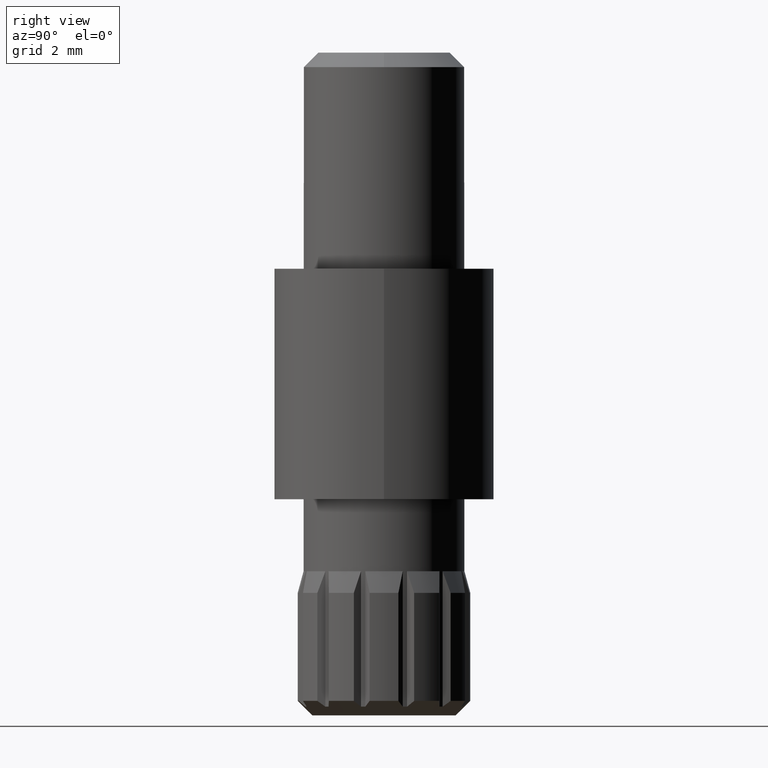
[diagram: clean part render]
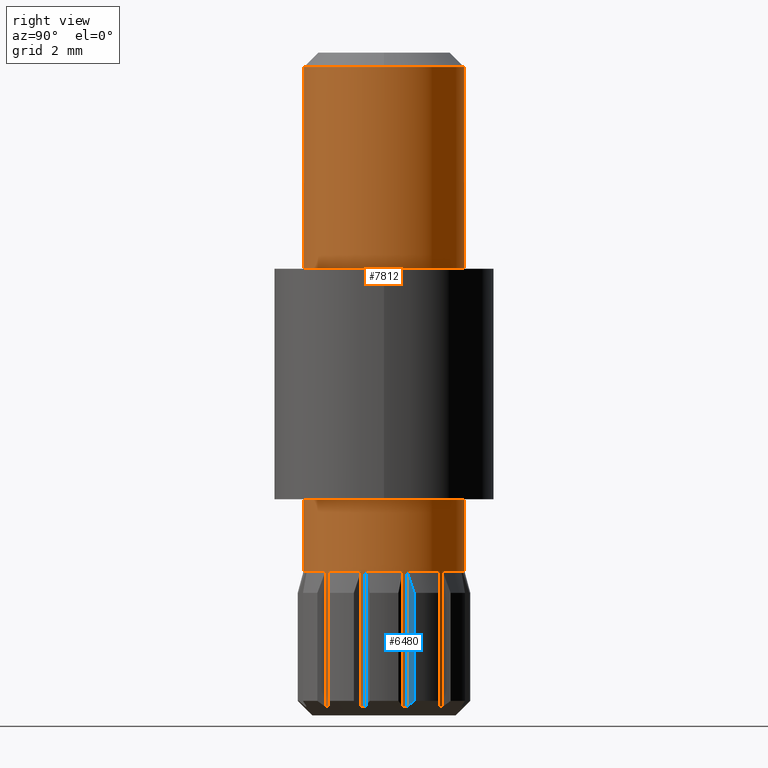
[diagram: same view with the hole feature highlighted: cylindrical wall and planar end face, labeled with their STEP entity ids]
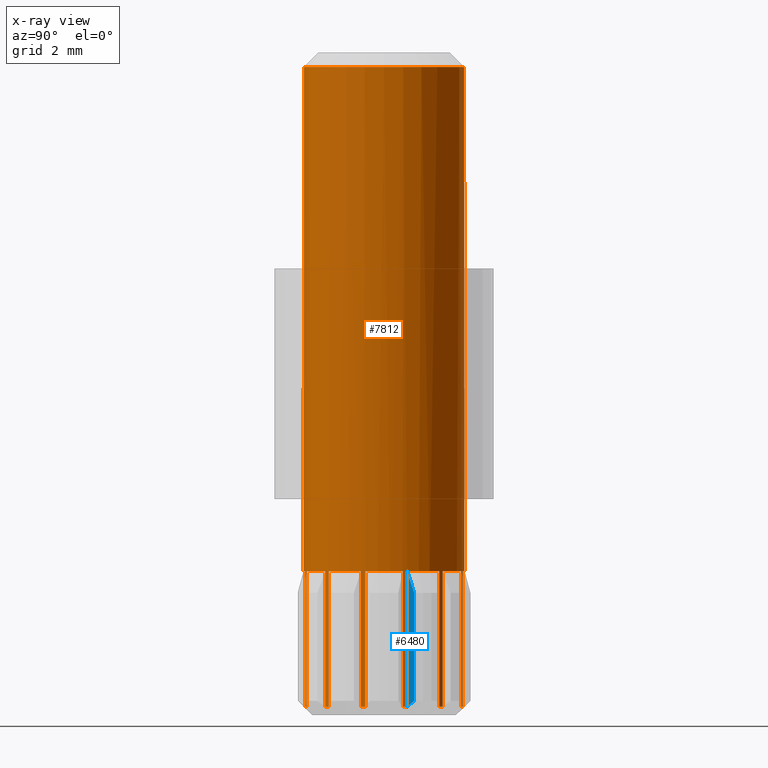
[diagram: x-ray of the same camera — body ghosted, the hole faces saturated]
A machine part, right view. The highlighted faces form one hole feature of diameter 5.6 mm: the cylindrical wall (entity #7812, orange) and its adjacent planar end face (entity #6480, blue) — they share a circular edge in the B-rep.
The next image is the same camera in x-ray (body ghosted, the hole faces saturated) — the bore reads through the body.
Wall:
#6 = DIRECTION ( 'NONE',  ( 0.000000000000000000, 0.000000000000000000, -1.000000000000000000 ) ) ;
#29 = DIRECTION ( 'NONE',  ( 0.000000000000000000, 0.000000000000000000, 1.000000000000000000 ) ) ;
#37 = ORIENTED_EDGE ( 'NONE', *, *, #7502, .T. ) ;
#64 = DIRECTION ( 'NONE',  ( 1.000000000000000000, 0.000000000000000000, 0.000000000000000000 ) ) ;
#92 = DIRECTION ( 'NONE',  ( 0.000000000000000000, 0.000000000000000000, 1.000000000000000000 ) ) ;
#101 = ORIENTED_EDGE ( 'NONE', *, *, #2137, .T. ) ;
#181 = CARTESIAN_POINT ( 'NONE',  ( 2.033627779027462612, 1.924670895599512432, 5.000000000000000888 ) ) ;
#231 = DIRECTION ( 'NONE',  ( 0.000000000000000000, 0.000000000000000000, -1.000000000000000000 ) ) ;
#276 = LINE ( 'NONE', #11826, #7999 ) ;
#279 = VERTEX_POINT ( 'NONE', #9187 ) ;
#293 = CARTESIAN_POINT ( 'NONE',  ( -2.033627779027435523, 1.924670895599541076, 5.000000000000000000 ) ) ;
#340 = CARTESIAN_POINT ( 'NONE',  ( -0.6500000000000001332, -2.723508766279265192, 5.000000000000000000 ) ) ;
#400 = VERTEX_POINT ( 'NONE', #6396 ) ;
#410 = EDGE_CURVE ( 'NONE', #12297, #7067, #2872, .T. ) ;
#510 = CARTESIAN_POINT ( 'NONE',  ( 2.033627779027463056, 1.924670895599512654, 0.2999999999999999334 ) ) ;
#645 = EDGE_LOOP ( 'NONE', ( #9977, #3326, #7216, #6768, #5356, #11461, #1287, #3783, #1062, #11351, #7611, #12247, #3300, #7050, #11385, #10868, #10869, #7730, #11650, #37, #8143, #8618, #10447, #2359, #1370, #101, #11748, #6563, #5672, #1427, #9020, #4490, #6494, #12428, #6712, #10213, #5005, #7232, #12411, #4634, #8679, #1032, #3861, #8223, #3102, #3468, #1774, #10575 ) ) ;
#684 = EDGE_CURVE ( 'NONE', #4462, #10033, #4604, .T. ) ;
#706 = VECTOR ( 'NONE', #8546, 1000.000000000000000 ) ;
#714 = AXIS2_PLACEMENT_3D ( 'NONE', #12992, #11049, #11124 ) ;
#719 = CARTESIAN_POINT ( 'NONE',  ( 0.7988378706797321094, -2.683627779027463855, 5.000000000000000000 ) ) ;
#768 = CARTESIAN_POINT ( 'NONE',  ( 2.033627779027463056, 1.924670895599512654, 5.000000000000000000 ) ) ;
#769 = LINE ( 'NONE', #768, #3770 ) ;
#795 = EDGE_CURVE ( 'NONE', #11417, #9894, #1610, .T. ) ;
#805 = CARTESIAN_POINT ( 'NONE',  ( 0.000000000000000000, 0.000000000000000000, 0.2999999999999996003 ) ) ;
#813 = CARTESIAN_POINT ( 'NONE',  ( -1.924670895599491116, 2.033627779027482596, 0.2999999999999996003 ) ) ;
#816 = CARTESIAN_POINT ( 'NONE',  ( -2.683627779027448756, 0.7988378706797784057, 5.000000000000000000 ) ) ;
#842 = CARTESIAN_POINT ( 'NONE',  ( 0.6500000000000000222, -2.723508766279264304, 5.000000000000000888 ) ) ;
#945 = VERTEX_POINT ( 'NONE', #2553 ) ;
#953 = VECTOR ( 'NONE', #5148, 1000.000000000000000 ) ;
#1028 = CARTESIAN_POINT ( 'NONE',  ( 2.723508766279266524, 0.6499999999999904743, 5.000000000000000000 ) ) ;
#1030 = DIRECTION ( 'NONE',  ( 0.000000000000000000, 0.000000000000000000, -1.000000000000000000 ) ) ;
#1032 = ORIENTED_EDGE ( 'NONE', *, *, #12293, .T. ) ;
#1033 = EDGE_CURVE ( 'NONE', #5716, #4518, #7728, .T. ) ;
#1059 = AXIS2_PLACEMENT_3D ( 'NONE', #5111, #1030, #6239 ) ;
#1062 = ORIENTED_EDGE ( 'NONE', *, *, #2222, .F. ) ;
#1065 = VECTOR ( 'NONE', #2794, 1000.000000000000000 ) ;
#1090 = DIRECTION ( 'NONE',  ( -0.5000000000000101030, -0.8660254037844328234, 0.000000000000000000 ) ) ;
#1152 = LINE ( 'NONE', #8473, #2591 ) ;
#1167 = EDGE_CURVE ( 'NONE', #4621, #4689, #7403, .T. ) ;
#1287 = ORIENTED_EDGE ( 'NONE', *, *, #8615, .T. ) ;
#1370 = ORIENTED_EDGE ( 'NONE', *, *, #11649, .F. ) ;
#1372 = VERTEX_POINT ( 'NONE', #6410 ) ;
#1382 = CARTESIAN_POINT ( 'NONE',  ( -0.7988378706797689688, -2.683627779027451865, 0.3000000000000002109 ) ) ;
#1396 = CARTESIAN_POINT ( 'NONE',  ( -2.683627779027466076, -0.7988378706797225615, 5.000000000000000000 ) ) ;
#1427 = ORIENTED_EDGE ( 'NONE', *, *, #4864, .T. ) ;
#1430 = CARTESIAN_POINT ( 'NONE',  ( -2.033627779027436411, 1.924670895599542186, 5.000000000000000000 ) ) ;
#1610 = LINE ( 'NONE', #6253, #5236 ) ;
#1628 = VERTEX_POINT ( 'NONE', #10433 ) ;
#1669 = DIRECTION ( 'NONE',  ( 0.000000000000000000, 0.000000000000000000, 1.000000000000000000 ) ) ;
#1740 = EDGE_CURVE ( 'NONE', #7067, #1628, #7870, .T. ) ;
#1774 = ORIENTED_EDGE ( 'NONE', *, *, #6419, .T. ) ;
#1892 = EDGE_LOOP ( 'NONE', ( #7335 ) ) ;
#1918 = CIRCLE ( 'NONE', #7538, 2.800000000000000266 ) ;
#1961 = EDGE_CURVE ( 'NONE', #11417, #3217, #11037, .T. ) ;
#1979 = DIRECTION ( 'NONE',  ( 0.000000000000000000, 0.000000000000000000, 1.000000000000000000 ) ) ;
#1983 = CARTESIAN_POINT ( 'NONE',  ( -2.723508766279257198, 0.6500000000000284439, 0.2999999999999996003 ) ) ;
#1984 = DIRECTION ( 'NONE',  ( 0.000000000000000000, 0.000000000000000000, 1.000000000000000000 ) ) ;
#1987 = LINE ( 'NONE', #5146, #3708 ) ;
#1991 = DIRECTION ( 'NONE',  ( 0.000000000000000000, 0.000000000000000000, 1.000000000000000000 ) ) ;
#2039 = CARTESIAN_POINT ( 'NONE',  ( -1.924670895599491116, 2.033627779027482596, 5.000000000000000888 ) ) ;
#2083 = CARTESIAN_POINT ( 'NONE',  ( -1.924670895599491116, 2.033627779027482596, 5.000000000000000000 ) ) ;
#2106 = DIRECTION ( 'NONE',  ( 1.000000000000000000, 0.000000000000000000, 0.000000000000000000 ) ) ;
#2137 = EDGE_CURVE ( 'NONE', #945, #6729, #1918, .T. ) ;
#2158 = CIRCLE ( 'NONE', #12566, 2.799999999999999822 ) ;
#2187 = CARTESIAN_POINT ( 'NONE',  ( -0.7988378706797126805, 2.683627779027468296, 0.2999999999999998224 ) ) ;
#2198 = CARTESIAN_POINT ( 'NONE',  ( -0.6499999999999999112, -2.723508766279263860, 0.2999999999999996003 ) ) ;
#2222 = EDGE_CURVE ( 'NONE', #12471, #6320, #11360, .T. ) ;
#2310 = EDGE_CURVE ( 'NONE', #7339, #4462, #11998, .T. ) ;
#2350 = DIRECTION ( 'NONE',  ( 0.000000000000000000, 0.000000000000000000, -1.000000000000000000 ) ) ;
#2359 = ORIENTED_EDGE ( 'NONE', *, *, #4672, .T. ) ;
#2454 = DIRECTION ( 'NONE',  ( 0.000000000000000000, 0.000000000000000000, -1.000000000000000000 ) ) ;
#2462 = CARTESIAN_POINT ( 'NONE',  ( 2.723508766279262527, -0.6500000000000095701, 5.000000000000000000 ) ) ;
#2491 = VERTEX_POINT ( 'NONE', #510 ) ;
#2549 = CARTESIAN_POINT ( 'NONE',  ( 0.000000000000000000, 0.000000000000000000, 0.2999999999999996003 ) ) ;
#2553 = CARTESIAN_POINT ( 'NONE',  ( 2.683627779027460747, 0.7988378706797413242, 5.000000000000000000 ) ) ;
#2588 = CARTESIAN_POINT ( 'NONE',  ( -0.7988378706797127915, 2.683627779027468296, 5.000000000000000000 ) ) ;
#2591 = VECTOR ( 'NONE', #2454, 1000.000000000000000 ) ;
#2699 = AXIS2_PLACEMENT_3D ( 'NONE', #7069, #1991, #11133 ) ;
#2780 = CIRCLE ( 'NONE', #2841, 2.800000000000000266 ) ;
#2782 = VERTEX_POINT ( 'NONE', #4354 ) ;
#2794 = DIRECTION ( 'NONE',  ( 0.000000000000000000, 0.000000000000000000, -1.000000000000000000 ) ) ;
#2841 = AXIS2_PLACEMENT_3D ( 'NONE', #10162, #11063, #6215 ) ;
#2872 = LINE ( 'NONE', #10216, #8978 ) ;
#2913 = CARTESIAN_POINT ( 'NONE',  ( 2.799999999999999822, 0.000000000000000000, 22.49999999999999645 ) ) ;
#2918 = VECTOR ( 'NONE', #11954, 1000.000000000000000 ) ;
#2926 = AXIS2_PLACEMENT_3D ( 'NONE', #4451, #1669, #11486 ) ;
#3027 = AXIS2_PLACEMENT_3D ( 'NONE', #805, #5874, #3713 ) ;
#3102 = ORIENTED_EDGE ( 'NONE', *, *, #5327, .F. ) ;
#3117 = CARTESIAN_POINT ( 'NONE',  ( 0.000000000000000000, 0.000000000000000000, 0.2999999999999996003 ) ) ;
#3217 = VERTEX_POINT ( 'NONE', #8529 ) ;
#3239 = EDGE_CURVE ( 'NONE', #5685, #5716, #7857, .T. ) ;
#3259 = CIRCLE ( 'NONE', #4211, 2.799999999999999822 ) ;
#3296 = DIRECTION ( 'NONE',  ( 0.000000000000000000, 0.000000000000000000, 1.000000000000000000 ) ) ;
#3300 = ORIENTED_EDGE ( 'NONE', *, *, #8744, .F. ) ;
#3326 = ORIENTED_EDGE ( 'NONE', *, *, #9368, .T. ) ;
#3353 = DIRECTION ( 'NONE',  ( 0.000000000000000000, 0.000000000000000000, 1.000000000000000000 ) ) ;
#3407 = LINE ( 'NONE', #6720, #6394 ) ;
#3468 = ORIENTED_EDGE ( 'NONE', *, *, #11345, .T. ) ;
#3497 = VERTEX_POINT ( 'NONE', #1382 ) ;
#3579 = VERTEX_POINT ( 'NONE', #8627 ) ;
#3625 = CARTESIAN_POINT ( 'NONE',  ( 2.683627779027454086, -0.7988378706797595319, 5.000000000000000888 ) ) ;
#3664 = DIRECTION ( 'NONE',  ( 0.000000000000000000, 0.000000000000000000, -1.000000000000000000 ) ) ;
#3699 = AXIS2_PLACEMENT_3D ( 'NONE', #2549, #4464, #9596 ) ;
#3708 = VECTOR ( 'NONE', #6, 1000.000000000000000 ) ;
#3713 = DIRECTION ( 'NONE',  ( 1.000000000000000000, 0.000000000000000000, 0.000000000000000000 ) ) ;
#3750 = DIRECTION ( 'NONE',  ( 0.000000000000000000, 0.000000000000000000, 1.000000000000000000 ) ) ;
#3770 = VECTOR ( 'NONE', #7793, 1000.000000000000000 ) ;
#3783 = ORIENTED_EDGE ( 'NONE', *, *, #6203, .T. ) ;
#3840 = EDGE_CURVE ( 'NONE', #6729, #2491, #769, .T. ) ;
#3854 = EDGE_CURVE ( 'NONE', #9868, #12166, #9423, .T. ) ;
#3861 = ORIENTED_EDGE ( 'NONE', *, *, #3854, .T. ) ;
#3887 = DIRECTION ( 'NONE',  ( 0.000000000000000000, 0.000000000000000000, 1.000000000000000000 ) ) ;
#3964 = VERTEX_POINT ( 'NONE', #2187 ) ;
#3976 = CARTESIAN_POINT ( 'NONE',  ( 1.924670895599519538, 2.033627779027455507, 0.2999999999999996003 ) ) ;
#4012 = CARTESIAN_POINT ( 'NONE',  ( 0.000000000000000000, 0.000000000000000000, 5.000000000000000000 ) ) ;
#4054 = CARTESIAN_POINT ( 'NONE',  ( 2.723508766279266524, 0.6499999999999904743, 0.2999999999999997113 ) ) ;
#4075 = CARTESIAN_POINT ( 'NONE',  ( -2.723508766279270965, -0.6499999999999713785, 5.000000000000000888 ) ) ;
#4115 = CARTESIAN_POINT ( 'NONE',  ( 0.000000000000000000, 0.000000000000000000, 0.2999999999999996003 ) ) ;
#4118 = DIRECTION ( 'NONE',  ( 0.000000000000000000, 0.000000000000000000, -1.000000000000000000 ) ) ;
#4200 = CARTESIAN_POINT ( 'NONE',  ( 2.683627779027454974, -0.7988378706797597539, 5.000000000000000000 ) ) ;
#4203 = FACE_OUTER_BOUND ( 'NONE', #1892, .T. ) ;
#4209 = DIRECTION ( 'NONE',  ( 0.000000000000000000, 0.000000000000000000, -1.000000000000000000 ) ) ;
#4211 = AXIS2_PLACEMENT_3D ( 'NONE', #7681, #11767, #4807 ) ;
#4217 = CIRCLE ( 'NONE', #1059, 2.799999999999999822 ) ;
#4236 = EDGE_CURVE ( 'NONE', #279, #1628, #6436, .T. ) ;
#4268 = EDGE_CURVE ( 'NONE', #12890, #9432, #276, .T. ) ;
#4294 = DIRECTION ( 'NONE',  ( 0.000000000000000000, 0.000000000000000000, -1.000000000000000000 ) ) ;
#4354 = CARTESIAN_POINT ( 'NONE',  ( 2.683627779027459859, 0.7988378706797408801, 0.2999999999999996003 ) ) ;
#4364 = CIRCLE ( 'NONE', #6983, 2.799999999999999822 ) ;
#4384 = LINE ( 'NONE', #11392, #6560 ) ;
#4403 = CARTESIAN_POINT ( 'NONE',  ( 0.7988378706797314432, -2.683627779027462967, 5.000000000000000000 ) ) ;
#4432 = EDGE_CURVE ( 'NONE', #7923, #11335, #10362, .T. ) ;
#4451 = CARTESIAN_POINT ( 'NONE',  ( 0.000000000000000000, 0.000000000000000000, 5.000000000000000000 ) ) ;
#4462 = VERTEX_POINT ( 'NONE', #2039 ) ;
#4464 = DIRECTION ( 'NONE',  ( 0.000000000000000000, 0.000000000000000000, 1.000000000000000000 ) ) ;
#4483 = EDGE_CURVE ( 'NONE', #8371, #4518, #12753, .T. ) ;
#4490 = ORIENTED_EDGE ( 'NONE', *, *, #1740, .T. ) ;
#4511 = CIRCLE ( 'NONE', #3699, 2.799999999999999822 ) ;
#4518 = VERTEX_POINT ( 'NONE', #7379 ) ;
#4553 = CIRCLE ( 'NONE', #714, 2.799999999999999822 ) ;
#4604 = LINE ( 'NONE', #2083, #8817 ) ;
#4616 = CARTESIAN_POINT ( 'NONE',  ( 0.000000000000000000, 0.000000000000000000, 0.2999999999999996003 ) ) ;
#4621 = VERTEX_POINT ( 'NONE', #12815 ) ;
#4629 = VERTEX_POINT ( 'NONE', #11766 ) ;
#4634 = ORIENTED_EDGE ( 'NONE', *, *, #6754, .T. ) ;
#4646 = VECTOR ( 'NONE', #4698, 1000.000000000000000 ) ;
#4672 = EDGE_CURVE ( 'NONE', #4689, #2782, #4553, .T. ) ;
#4689 = VERTEX_POINT ( 'NONE', #4054 ) ;
#4698 = DIRECTION ( 'NONE',  ( 0.000000000000000000, 0.000000000000000000, -1.000000000000000000 ) ) ;
#4699 = CIRCLE ( 'NONE', #2926, 2.800000000000000711 ) ;
#4746 = VERTEX_POINT ( 'NONE', #5069 ) ;
#4807 = DIRECTION ( 'NONE',  ( 1.000000000000000000, 0.000000000000000000, 0.000000000000000000 ) ) ;
#4864 = EDGE_CURVE ( 'NONE', #7731, #12297, #4699, .T. ) ;
#4978 = DIRECTION ( 'NONE',  ( 3.491481338843133750E-15, 1.000000000000000000, 0.000000000000000000 ) ) ;
#5005 = ORIENTED_EDGE ( 'NONE', *, *, #10985, .F. ) ;
#5069 = CARTESIAN_POINT ( 'NONE',  ( -2.033627779027476379, -1.924670895599498444, 0.2999999999999999334 ) ) ;
#5111 = CARTESIAN_POINT ( 'NONE',  ( 0.000000000000000000, 0.000000000000000000, 22.49999999999999645 ) ) ;
#5118 = DIRECTION ( 'NONE',  ( -0.8660254037844449249, -0.4999999999999889533, 0.000000000000000000 ) ) ;
#5146 = CARTESIAN_POINT ( 'NONE',  ( -0.7988378706797689688, -2.683627779027451865, 5.000000000000000000 ) ) ;
#5148 = DIRECTION ( 'NONE',  ( 0.000000000000000000, 0.000000000000000000, -1.000000000000000000 ) ) ;
#5199 = CARTESIAN_POINT ( 'NONE',  ( 0.000000000000000000, 0.000000000000000000, 5.000000000000000000 ) ) ;
#5236 = VECTOR ( 'NONE', #6427, 1000.000000000000000 ) ;
#5298 = LINE ( 'NONE', #4403, #8107 ) ;
#5327 = EDGE_CURVE ( 'NONE', #7483, #9212, #10339, .T. ) ;
#5345 = CARTESIAN_POINT ( 'NONE',  ( -2.723508766279257198, 0.6500000000000284439, 5.000000000000000000 ) ) ;
#5356 = ORIENTED_EDGE ( 'NONE', *, *, #795, .F. ) ;
#5374 = CARTESIAN_POINT ( 'NONE',  ( 2.683627779027454974, -0.7988378706797596429, 0.3000000000000002665 ) ) ;
#5402 = VERTEX_POINT ( 'NONE', #1430 ) ;
#5453 = LINE ( 'NONE', #5633, #8571 ) ;
#5475 = VECTOR ( 'NONE', #4294, 1000.000000000000000 ) ;
#5516 = CARTESIAN_POINT ( 'NONE',  ( 0.000000000000000000, 0.000000000000000000, 0.2999999999999996003 ) ) ;
#5614 = AXIS2_PLACEMENT_3D ( 'NONE', #9975, #11937, #8850 ) ;
#5633 = CARTESIAN_POINT ( 'NONE',  ( 1.924670895599519760, 2.033627779027455951, 5.000000000000000000 ) ) ;
#5672 = ORIENTED_EDGE ( 'NONE', *, *, #8104, .F. ) ;
#5685 = VERTEX_POINT ( 'NONE', #7658 ) ;
#5694 = CARTESIAN_POINT ( 'NONE',  ( 1.924670895599505327, -2.033627779027469273, 0.2999999999999997669 ) ) ;
#5716 = VERTEX_POINT ( 'NONE', #5694 ) ;
#5736 = DIRECTION ( 'NONE',  ( 0.000000000000000000, 0.000000000000000000, -1.000000000000000000 ) ) ;
#5874 = DIRECTION ( 'NONE',  ( 0.000000000000000000, 0.000000000000000000, 1.000000000000000000 ) ) ;
#5896 = CARTESIAN_POINT ( 'NONE',  ( 0.000000000000000000, 0.000000000000000000, 5.000000000000000000 ) ) ;
#5900 = CIRCLE ( 'NONE', #2699, 2.799999999999999822 ) ;
#5917 = EDGE_CURVE ( 'NONE', #279, #6191, #2780, .T. ) ;
#5988 = EDGE_CURVE ( 'NONE', #5402, #9634, #10969, .T. ) ;
#6023 = DIRECTION ( 'NONE',  ( 0.8660254037844344888, -0.5000000000000071054, 0.000000000000000000 ) ) ;
#6029 = DIRECTION ( 'NONE',  ( 0.000000000000000000, 0.000000000000000000, -1.000000000000000000 ) ) ;
#6039 = AXIS2_PLACEMENT_3D ( 'NONE', #5896, #3887, #1090 ) ;
#6066 = CYLINDRICAL_SURFACE ( 'NONE', #13094, 2.799999999999999822 ) ;
#6069 = CARTESIAN_POINT ( 'NONE',  ( 0.000000000000000000, 0.000000000000000000, 5.000000000000000000 ) ) ;
#6086 = EDGE_CURVE ( 'NONE', #4746, #9894, #2158, .T. ) ;
#6141 = AXIS2_PLACEMENT_3D ( 'NONE', #5199, #1984, #12244 ) ;
#6191 = VERTEX_POINT ( 'NONE', #11853 ) ;
#6203 = EDGE_CURVE ( 'NONE', #3497, #6320, #3259, .T. ) ;
#6207 = AXIS2_PLACEMENT_3D ( 'NONE', #6069, #10027, #6023 ) ;
#6215 = DIRECTION ( 'NONE',  ( -1.000000000000000000, 0.000000000000000000, 0.000000000000000000 ) ) ;
#6239 = DIRECTION ( 'NONE',  ( 1.000000000000000000, 0.000000000000000000, 0.000000000000000000 ) ) ;
#6253 = CARTESIAN_POINT ( 'NONE',  ( -1.924670895599533971, -2.033627779027443072, 5.000000000000000000 ) ) ;
#6293 = CARTESIAN_POINT ( 'NONE',  ( 0.000000000000000000, 0.000000000000000000, 5.000000000000000000 ) ) ;
#6295 = CARTESIAN_POINT ( 'NONE',  ( 0.000000000000000000, 0.000000000000000000, 5.000000000000000000 ) ) ;
#6301 = AXIS2_PLACEMENT_3D ( 'NONE', #7366, #3296, #10453 ) ;
#6319 = EDGE_CURVE ( 'NONE', #7283, #7283, #4217, .T. ) ;
#6320 = VERTEX_POINT ( 'NONE', #2198 ) ;
#6383 = CARTESIAN_POINT ( 'NONE',  ( 2.033627779027449289, -1.924670895599527531, 5.000000000000000000 ) ) ;
#6394 = VECTOR ( 'NONE', #11849, 1000.000000000000000 ) ;
#6396 = CARTESIAN_POINT ( 'NONE',  ( -2.723508766279271409, -0.6499999999999714895, 0.2999999999999998779 ) ) ;
#6410 = CARTESIAN_POINT ( 'NONE',  ( 0.7988378706797313322, -2.683627779027462523, 0.2999999999999996003 ) ) ;
#6419 = EDGE_CURVE ( 'NONE', #10383, #400, #4384, .T. ) ;
#6427 = DIRECTION ( 'NONE',  ( 0.000000000000000000, 0.000000000000000000, -1.000000000000000000 ) ) ;
#6436 = LINE ( 'NONE', #10529, #8628 ) ;
#6456 = AXIS2_PLACEMENT_3D ( 'NONE', #10475, #7480, #8496 ) ;
#6494 = ORIENTED_EDGE ( 'NONE', *, *, #4236, .F. ) ;
#6539 = CIRCLE ( 'NONE', #10800, 2.800000000000000711 ) ;
#6560 = VECTOR ( 'NONE', #231, 1000.000000000000000 ) ;
#6563 = ORIENTED_EDGE ( 'NONE', *, *, #8324, .T. ) ;
#6573 = DIRECTION ( 'NONE',  ( 0.000000000000000000, 0.000000000000000000, -1.000000000000000000 ) ) ;
#6580 = VERTEX_POINT ( 'NONE', #719 ) ;
#6601 = DIRECTION ( 'NONE',  ( 1.000000000000000000, 0.000000000000000000, 0.000000000000000000 ) ) ;
#6612 = DIRECTION ( 'NONE',  ( 0.000000000000000000, 0.000000000000000000, 1.000000000000000000 ) ) ;
#6663 = EDGE_CURVE ( 'NONE', #6580, #5685, #7327, .T. ) ;
#6667 = CARTESIAN_POINT ( 'NONE',  ( 2.683627779027459859, 0.7988378706797408801, 5.000000000000000000 ) ) ;
#6691 = LINE ( 'NONE', #11599, #706 ) ;
#6712 = ORIENTED_EDGE ( 'NONE', *, *, #7350, .T. ) ;
#6720 = CARTESIAN_POINT ( 'NONE',  ( -2.683627779027465632, -0.7988378706797221174, 5.000000000000000000 ) ) ;
#6729 = VERTEX_POINT ( 'NONE', #181 ) ;
#6754 = EDGE_CURVE ( 'NONE', #10033, #9634, #7647, .T. ) ;
#6768 = ORIENTED_EDGE ( 'NONE', *, *, #6086, .T. ) ;
#6879 = AXIS2_PLACEMENT_3D ( 'NONE', #7987, #1979, #8980 ) ;
#6899 = DIRECTION ( 'NONE',  ( 1.000000000000000000, 0.000000000000000000, 0.000000000000000000 ) ) ;
#6919 = EDGE_CURVE ( 'NONE', #12166, #9212, #4364, .T. ) ;
#6983 = AXIS2_PLACEMENT_3D ( 'NONE', #4616, #11658, #8555 ) ;
#7050 = ORIENTED_EDGE ( 'NONE', *, *, #6663, .T. ) ;
#7067 = VERTEX_POINT ( 'NONE', #7627 ) ;
#7069 = CARTESIAN_POINT ( 'NONE',  ( 0.000000000000000000, 0.000000000000000000, 0.2999999999999996003 ) ) ;
#7090 = EDGE_CURVE ( 'NONE', #3579, #3964, #12084, .T. ) ;
#7216 = ORIENTED_EDGE ( 'NONE', *, *, #9462, .T. ) ;
#7232 = ORIENTED_EDGE ( 'NONE', *, *, #2310, .T. ) ;
#7283 = VERTEX_POINT ( 'NONE', #2913 ) ;
#7327 = CIRCLE ( 'NONE', #6879, 2.800000000000000266 ) ;
#7332 = CARTESIAN_POINT ( 'NONE',  ( -1.924670895599534415, -2.033627779027443072, 5.000000000000000000 ) ) ;
#7335 = ORIENTED_EDGE ( 'NONE', *, *, #6319, .T. ) ;
#7339 = VERTEX_POINT ( 'NONE', #8623 ) ;
#7350 = EDGE_CURVE ( 'NONE', #6191, #3579, #6691, .T. ) ;
#7366 = CARTESIAN_POINT ( 'NONE',  ( 0.000000000000000000, 0.000000000000000000, 5.000000000000000000 ) ) ;
#7379 = CARTESIAN_POINT ( 'NONE',  ( 2.033627779027448845, -1.924670895599526865, 0.2999999999999996003 ) ) ;
#7403 = LINE ( 'NONE', #1028, #953 ) ;
#7477 = CIRCLE ( 'NONE', #11068, 2.799999999999999822 ) ;
#7480 = DIRECTION ( 'NONE',  ( 0.000000000000000000, 0.000000000000000000, 1.000000000000000000 ) ) ;
#7483 = VERTEX_POINT ( 'NONE', #10876 ) ;
#7502 = EDGE_CURVE ( 'NONE', #11335, #7710, #9690, .T. ) ;
#7538 = AXIS2_PLACEMENT_3D ( 'NONE', #6293, #10239, #9215 ) ;
#7611 = ORIENTED_EDGE ( 'NONE', *, *, #4268, .T. ) ;
#7627 = CARTESIAN_POINT ( 'NONE',  ( 0.7988378706797500950, 2.683627779027457194, 0.2999999999999997669 ) ) ;
#7647 = CIRCLE ( 'NONE', #10355, 2.799999999999999822 ) ;
#7658 = CARTESIAN_POINT ( 'NONE',  ( 1.924670895599505327, -2.033627779027469273, 5.000000000000000888 ) ) ;
#7676 = VECTOR ( 'NONE', #11234, 1000.000000000000000 ) ;
#7681 = CARTESIAN_POINT ( 'NONE',  ( 0.000000000000000000, 0.000000000000000000, 0.2999999999999996003 ) ) ;
#7710 = VERTEX_POINT ( 'NONE', #11515 ) ;
#7728 = CIRCLE ( 'NONE', #5614, 2.799999999999999822 ) ;
#7730 = ORIENTED_EDGE ( 'NONE', *, *, #12531, .T. ) ;
#7731 = VERTEX_POINT ( 'NONE', #8453 ) ;
#7733 = DIRECTION ( 'NONE',  ( -1.000000000000000000, 0.000000000000000000, 0.000000000000000000 ) ) ;
#7793 = DIRECTION ( 'NONE',  ( 0.000000000000000000, 0.000000000000000000, -1.000000000000000000 ) ) ;
#7812 = ADVANCED_FACE ( 'NONE', ( #11426, #4203 ), #6066, .T. ) ;
#7857 = LINE ( 'NONE', #11720, #12908 ) ;
#7870 = CIRCLE ( 'NONE', #6456, 2.799999999999999822 ) ;
#7923 = VERTEX_POINT ( 'NONE', #3625 ) ;
#7987 = CARTESIAN_POINT ( 'NONE',  ( 0.000000000000000000, 0.000000000000000000, 5.000000000000000000 ) ) ;
#7999 = VECTOR ( 'NONE', #5736, 1000.000000000000000 ) ;
#8104 = EDGE_CURVE ( 'NONE', #7731, #9549, #5453, .T. ) ;
#8107 = VECTOR ( 'NONE', #8467, 1000.000000000000000 ) ;
#8143 = ORIENTED_EDGE ( 'NONE', *, *, #9925, .F. ) ;
#8167 = CARTESIAN_POINT ( 'NONE',  ( -2.683627779027448756, 0.7988378706797785167, 5.000000000000000888 ) ) ;
#8212 = EDGE_CURVE ( 'NONE', #9432, #1372, #5900, .T. ) ;
#8223 = ORIENTED_EDGE ( 'NONE', *, *, #6919, .T. ) ;
#8324 = EDGE_CURVE ( 'NONE', #2491, #9549, #4511, .T. ) ;
#8371 = VERTEX_POINT ( 'NONE', #6383 ) ;
#8378 = VERTEX_POINT ( 'NONE', #2462 ) ;
#8453 = CARTESIAN_POINT ( 'NONE',  ( 1.924670895599520426, 2.033627779027456395, 5.000000000000000000 ) ) ;
#8467 = DIRECTION ( 'NONE',  ( 0.000000000000000000, 0.000000000000000000, -1.000000000000000000 ) ) ;
#8473 = CARTESIAN_POINT ( 'NONE',  ( 2.723508766279262083, -0.6500000000000094591, 5.000000000000000000 ) ) ;
#8496 = DIRECTION ( 'NONE',  ( 1.000000000000000000, 0.000000000000000000, 0.000000000000000000 ) ) ;
#8528 = AXIS2_PLACEMENT_3D ( 'NONE', #4012, #10995, #4978 ) ;
#8529 = CARTESIAN_POINT ( 'NONE',  ( -0.7988378706797688578, -2.683627779027451421, 5.000000000000000888 ) ) ;
#8535 = DIRECTION ( 'NONE',  ( 0.000000000000000000, 0.000000000000000000, 1.000000000000000000 ) ) ;
#8546 = DIRECTION ( 'NONE',  ( 0.000000000000000000, 0.000000000000000000, -1.000000000000000000 ) ) ;
#8555 = DIRECTION ( 'NONE',  ( 1.000000000000000000, 0.000000000000000000, 0.000000000000000000 ) ) ;
#8571 = VECTOR ( 'NONE', #3664, 1000.000000000000000 ) ;
#8615 = EDGE_CURVE ( 'NONE', #3217, #3497, #1987, .T. ) ;
#8618 = ORIENTED_EDGE ( 'NONE', *, *, #9214, .T. ) ;
#8623 = CARTESIAN_POINT ( 'NONE',  ( -0.7988378706797133466, 2.683627779027469185, 5.000000000000000000 ) ) ;
#8627 = CARTESIAN_POINT ( 'NONE',  ( -0.6499999999999999112, 2.723508766279263860, 0.2999999999999996003 ) ) ;
#8628 = VECTOR ( 'NONE', #6573, 1000.000000000000000 ) ;
#8679 = ORIENTED_EDGE ( 'NONE', *, *, #5988, .F. ) ;
#8718 = DIRECTION ( 'NONE',  ( 0.000000000000000000, 0.000000000000000000, -1.000000000000000000 ) ) ;
#8744 = EDGE_CURVE ( 'NONE', #6580, #1372, #5298, .T. ) ;
#8817 = VECTOR ( 'NONE', #6029, 1000.000000000000000 ) ;
#8850 = DIRECTION ( 'NONE',  ( 1.000000000000000000, 0.000000000000000000, 0.000000000000000000 ) ) ;
#8861 = CARTESIAN_POINT ( 'NONE',  ( -2.033627779027476379, -1.924670895599498444, 5.000000000000000000 ) ) ;
#8978 = VECTOR ( 'NONE', #4209, 1000.000000000000000 ) ;
#8980 = DIRECTION ( 'NONE',  ( 0.8660254037844415942, 0.4999999999999950040, 0.000000000000000000 ) ) ;
#9020 = ORIENTED_EDGE ( 'NONE', *, *, #410, .T. ) ;
#9113 = EDGE_CURVE ( 'NONE', #10928, #9420, #3407, .T. ) ;
#9187 = CARTESIAN_POINT ( 'NONE',  ( 0.6500000000000001332, 2.723508766279265192, 5.000000000000000000 ) ) ;
#9212 = VERTEX_POINT ( 'NONE', #1983 ) ;
#9214 = EDGE_CURVE ( 'NONE', #8378, #4621, #12395, .T. ) ;
#9215 = DIRECTION ( 'NONE',  ( -0.4999999999999980016, 0.8660254037844399289, 0.000000000000000000 ) ) ;
#9266 = CARTESIAN_POINT ( 'NONE',  ( 0.000000000000000000, 0.000000000000000000, 5.000000000000000000 ) ) ;
#9368 = EDGE_CURVE ( 'NONE', #10928, #4629, #6539, .T. ) ;
#9420 = VERTEX_POINT ( 'NONE', #10827 ) ;
#9423 = LINE ( 'NONE', #816, #1065 ) ;
#9432 = VERTEX_POINT ( 'NONE', #11907 ) ;
#9462 = EDGE_CURVE ( 'NONE', #4629, #4746, #11914, .T. ) ;
#9488 = EDGE_CURVE ( 'NONE', #400, #9420, #7477, .T. ) ;
#9549 = VERTEX_POINT ( 'NONE', #3976 ) ;
#9596 = DIRECTION ( 'NONE',  ( 1.000000000000000000, 0.000000000000000000, 0.000000000000000000 ) ) ;
#9634 = VERTEX_POINT ( 'NONE', #12294 ) ;
#9639 = DIRECTION ( 'NONE',  ( 0.000000000000000000, 0.000000000000000000, -1.000000000000000000 ) ) ;
#9653 = DIRECTION ( 'NONE',  ( 0.4999999999999918954, -0.8660254037844432595, 0.000000000000000000 ) ) ;
#9690 = CIRCLE ( 'NONE', #11736, 2.799999999999999822 ) ;
#9771 = DIRECTION ( 'NONE',  ( -0.000000000000000000, -0.000000000000000000, -1.000000000000000000 ) ) ;
#9819 = CIRCLE ( 'NONE', #6141, 2.800000000000000711 ) ;
#9868 = VERTEX_POINT ( 'NONE', #8167 ) ;
#9894 = VERTEX_POINT ( 'NONE', #12377 ) ;
#9925 = EDGE_CURVE ( 'NONE', #8378, #7710, #1152, .T. ) ;
#9975 = CARTESIAN_POINT ( 'NONE',  ( 0.000000000000000000, 0.000000000000000000, 0.2999999999999996003 ) ) ;
#9977 = ORIENTED_EDGE ( 'NONE', *, *, #9113, .F. ) ;
#10027 = DIRECTION ( 'NONE',  ( 0.000000000000000000, 0.000000000000000000, 1.000000000000000000 ) ) ;
#10033 = VERTEX_POINT ( 'NONE', #813 ) ;
#10051 = VECTOR ( 'NONE', #4118, 1000.000000000000000 ) ;
#10106 = VECTOR ( 'NONE', #8718, 1000.000000000000000 ) ;
#10114 = CARTESIAN_POINT ( 'NONE',  ( 2.033627779027449289, -1.924670895599527087, 5.000000000000000000 ) ) ;
#10151 = DIRECTION ( 'NONE',  ( 0.000000000000000000, 0.000000000000000000, -1.000000000000000000 ) ) ;
#10162 = CARTESIAN_POINT ( 'NONE',  ( 0.000000000000000000, 0.000000000000000000, 5.000000000000000000 ) ) ;
#10213 = ORIENTED_EDGE ( 'NONE', *, *, #7090, .T. ) ;
#10216 = CARTESIAN_POINT ( 'NONE',  ( 0.7988378706797502060, 2.683627779027457194, 5.000000000000000000 ) ) ;
#10239 = DIRECTION ( 'NONE',  ( 0.000000000000000000, 0.000000000000000000, 1.000000000000000000 ) ) ;
#10272 = LINE ( 'NONE', #6667, #10106 ) ;
#10285 = CIRCLE ( 'NONE', #6301, 2.800000000000000266 ) ;
#10339 = LINE ( 'NONE', #5345, #12414 ) ;
#10346 = CARTESIAN_POINT ( 'NONE',  ( -2.683627779027448756, 0.7988378706797785167, 0.2999999999999998224 ) ) ;
#10355 = AXIS2_PLACEMENT_3D ( 'NONE', #3117, #92, #2106 ) ;
#10362 = LINE ( 'NONE', #4200, #7676 ) ;
#10383 = VERTEX_POINT ( 'NONE', #4075 ) ;
#10387 = VECTOR ( 'NONE', #10151, 1000.000000000000000 ) ;
#10433 = CARTESIAN_POINT ( 'NONE',  ( 0.6499999999999999112, 2.723508766279263860, 0.2999999999999996003 ) ) ;
#10447 = ORIENTED_EDGE ( 'NONE', *, *, #1167, .T. ) ;
#10453 = DIRECTION ( 'NONE',  ( 1.000000000000000000, 0.000000000000000000, 0.000000000000000000 ) ) ;
#10475 = CARTESIAN_POINT ( 'NONE',  ( 0.000000000000000000, 0.000000000000000000, 0.2999999999999996003 ) ) ;
#10529 = CARTESIAN_POINT ( 'NONE',  ( 0.6500000000000000222, 2.723508766279264304, 5.000000000000000000 ) ) ;
#10575 = ORIENTED_EDGE ( 'NONE', *, *, #9488, .T. ) ;
#10616 = CIRCLE ( 'NONE', #6039, 2.799999999999999822 ) ;
#10781 = CARTESIAN_POINT ( 'NONE',  ( 0.7988378706797502060, 2.683627779027457194, 5.000000000000000888 ) ) ;
#10800 = AXIS2_PLACEMENT_3D ( 'NONE', #12667, #6612, #9653 ) ;
#10827 = CARTESIAN_POINT ( 'NONE',  ( -2.683627779027465632, -0.7988378706797221174, 0.2999999999999996003 ) ) ;
#10868 = ORIENTED_EDGE ( 'NONE', *, *, #1033, .T. ) ;
#10869 = ORIENTED_EDGE ( 'NONE', *, *, #4483, .F. ) ;
#10876 = CARTESIAN_POINT ( 'NONE',  ( -2.723508766279258086, 0.6500000000000286660, 5.000000000000000000 ) ) ;
#10913 = EDGE_CURVE ( 'NONE', #12471, #12890, #10285, .T. ) ;
#10928 = VERTEX_POINT ( 'NONE', #1396 ) ;
#10969 = LINE ( 'NONE', #293, #5475 ) ;
#10985 = EDGE_CURVE ( 'NONE', #7339, #3964, #12685, .T. ) ;
#10995 = DIRECTION ( 'NONE',  ( 0.000000000000000000, 0.000000000000000000, 1.000000000000000000 ) ) ;
#11037 = CIRCLE ( 'NONE', #6207, 2.800000000000000711 ) ;
#11049 = DIRECTION ( 'NONE',  ( 0.000000000000000000, 0.000000000000000000, 1.000000000000000000 ) ) ;
#11063 = DIRECTION ( 'NONE',  ( -0.000000000000000000, -0.000000000000000000, 1.000000000000000000 ) ) ;
#11068 = AXIS2_PLACEMENT_3D ( 'NONE', #12959, #3750, #6899 ) ;
#11124 = DIRECTION ( 'NONE',  ( 1.000000000000000000, 0.000000000000000000, 0.000000000000000000 ) ) ;
#11133 = DIRECTION ( 'NONE',  ( 1.000000000000000000, 0.000000000000000000, 0.000000000000000000 ) ) ;
#11180 = AXIS2_PLACEMENT_3D ( 'NONE', #9266, #11323, #5118 ) ;
#11234 = DIRECTION ( 'NONE',  ( 0.000000000000000000, 0.000000000000000000, -1.000000000000000000 ) ) ;
#11323 = DIRECTION ( 'NONE',  ( 0.000000000000000000, 0.000000000000000000, 1.000000000000000000 ) ) ;
#11335 = VERTEX_POINT ( 'NONE', #5374 ) ;
#11345 = EDGE_CURVE ( 'NONE', #7483, #10383, #12673, .T. ) ;
#11351 = ORIENTED_EDGE ( 'NONE', *, *, #10913, .T. ) ;
#11360 = LINE ( 'NONE', #12340, #10387 ) ;
#11385 = ORIENTED_EDGE ( 'NONE', *, *, #3239, .T. ) ;
#11392 = CARTESIAN_POINT ( 'NONE',  ( -2.723508766279271409, -0.6499999999999714895, 5.000000000000000000 ) ) ;
#11405 = DIRECTION ( 'NONE',  ( -1.047444401652940164E-14, -1.000000000000000000, 0.000000000000000000 ) ) ;
#11417 = VERTEX_POINT ( 'NONE', #7332 ) ;
#11426 = FACE_OUTER_BOUND ( 'NONE', #645, .T. ) ;
#11461 = ORIENTED_EDGE ( 'NONE', *, *, #1961, .T. ) ;
#11486 = DIRECTION ( 'NONE',  ( -0.8660254037844380415, 0.5000000000000009992, 0.000000000000000000 ) ) ;
#11515 = CARTESIAN_POINT ( 'NONE',  ( 2.723508766279261639, -0.6500000000000093481, 0.2999999999999996003 ) ) ;
#11599 = CARTESIAN_POINT ( 'NONE',  ( -0.6500000000000000222, 2.723508766279264304, 5.000000000000000000 ) ) ;
#11649 = EDGE_CURVE ( 'NONE', #945, #2782, #10272, .T. ) ;
#11650 = ORIENTED_EDGE ( 'NONE', *, *, #4432, .T. ) ;
#11658 = DIRECTION ( 'NONE',  ( 0.000000000000000000, 0.000000000000000000, 1.000000000000000000 ) ) ;
#11720 = CARTESIAN_POINT ( 'NONE',  ( 1.924670895599505327, -2.033627779027469273, 5.000000000000000000 ) ) ;
#11731 = CARTESIAN_POINT ( 'NONE',  ( 0.000000000000000000, 0.000000000000000000, 23.00000000000000000 ) ) ;
#11736 = AXIS2_PLACEMENT_3D ( 'NONE', #4115, #29, #64 ) ;
#11748 = ORIENTED_EDGE ( 'NONE', *, *, #3840, .T. ) ;
#11766 = CARTESIAN_POINT ( 'NONE',  ( -2.033627779027475935, -1.924670895599498222, 5.000000000000000888 ) ) ;
#11767 = DIRECTION ( 'NONE',  ( 0.000000000000000000, 0.000000000000000000, 1.000000000000000000 ) ) ;
#11826 = CARTESIAN_POINT ( 'NONE',  ( 0.6500000000000000222, -2.723508766279264304, 5.000000000000000000 ) ) ;
#11849 = DIRECTION ( 'NONE',  ( 0.000000000000000000, 0.000000000000000000, -1.000000000000000000 ) ) ;
#11853 = CARTESIAN_POINT ( 'NONE',  ( -0.6500000000000000222, 2.723508766279264304, 5.000000000000000888 ) ) ;
#11907 = CARTESIAN_POINT ( 'NONE',  ( 0.6500000000000000222, -2.723508766279264304, 0.2999999999999998779 ) ) ;
#11914 = LINE ( 'NONE', #8861, #2918 ) ;
#11937 = DIRECTION ( 'NONE',  ( 0.000000000000000000, 0.000000000000000000, 1.000000000000000000 ) ) ;
#11954 = DIRECTION ( 'NONE',  ( 0.000000000000000000, 0.000000000000000000, -1.000000000000000000 ) ) ;
#11998 = CIRCLE ( 'NONE', #11180, 2.800000000000000266 ) ;
#12084 = CIRCLE ( 'NONE', #3027, 2.799999999999999822 ) ;
#12166 = VERTEX_POINT ( 'NONE', #10346 ) ;
#12244 = DIRECTION ( 'NONE',  ( 0.5000000000000039968, 0.8660254037844363761, 0.000000000000000000 ) ) ;
#12247 = ORIENTED_EDGE ( 'NONE', *, *, #8212, .T. ) ;
#12293 = EDGE_CURVE ( 'NONE', #5402, #9868, #10616, .T. ) ;
#12294 = CARTESIAN_POINT ( 'NONE',  ( -2.033627779027435523, 1.924670895599541076, 0.2999999999999996003 ) ) ;
#12297 = VERTEX_POINT ( 'NONE', #10781 ) ;
#12340 = CARTESIAN_POINT ( 'NONE',  ( -0.6500000000000000222, -2.723508766279264304, 5.000000000000000000 ) ) ;
#12377 = CARTESIAN_POINT ( 'NONE',  ( -1.924670895599533749, -2.033627779027442628, 0.2999999999999996003 ) ) ;
#12395 = CIRCLE ( 'NONE', #8528, 2.800000000000000266 ) ;
#12411 = ORIENTED_EDGE ( 'NONE', *, *, #684, .T. ) ;
#12414 = VECTOR ( 'NONE', #2350, 1000.000000000000000 ) ;
#12428 = ORIENTED_EDGE ( 'NONE', *, *, #5917, .T. ) ;
#12471 = VERTEX_POINT ( 'NONE', #340 ) ;
#12531 = EDGE_CURVE ( 'NONE', #8371, #7923, #9819, .T. ) ;
#12566 = AXIS2_PLACEMENT_3D ( 'NONE', #5516, #8535, #6601 ) ;
#12667 = CARTESIAN_POINT ( 'NONE',  ( 0.000000000000000000, 0.000000000000000000, 5.000000000000000000 ) ) ;
#12673 = CIRCLE ( 'NONE', #13061, 2.800000000000000266 ) ;
#12685 = LINE ( 'NONE', #2588, #4646 ) ;
#12753 = LINE ( 'NONE', #10114, #10051 ) ;
#12815 = CARTESIAN_POINT ( 'NONE',  ( 2.723508766279266524, 0.6499999999999904743, 5.000000000000000888 ) ) ;
#12890 = VERTEX_POINT ( 'NONE', #842 ) ;
#12908 = VECTOR ( 'NONE', #9639, 1000.000000000000000 ) ;
#12959 = CARTESIAN_POINT ( 'NONE',  ( 0.000000000000000000, 0.000000000000000000, 0.2999999999999996003 ) ) ;
#12992 = CARTESIAN_POINT ( 'NONE',  ( 0.000000000000000000, 0.000000000000000000, 0.2999999999999996003 ) ) ;
#13061 = AXIS2_PLACEMENT_3D ( 'NONE', #6295, #3353, #11405 ) ;
#13094 = AXIS2_PLACEMENT_3D ( 'NONE', #11731, #9771, #7733 ) ;
End face:
#69 = EDGE_CURVE ( 'NONE', #945, #7566, #708, .T. ) ;
#250 = EDGE_LOOP ( 'NONE', ( #1585, #1606, #1234, #8921 ) ) ;
#708 = B_SPLINE_CURVE_WITH_KNOTS ( 'NONE', 3,
 ( #10791, #3901, #759, #11832 ),
 .UNSPECIFIED., .F., .F.,
 ( 4, 4 ),
 ( 2.142295073325125689E-07, 0.0008002172599519532864 ),
 .UNSPECIFIED. ) ;
#759 = CARTESIAN_POINT ( 'NONE',  ( 2.770178097237234738, 0.9658240740985943873, 4.500908567543602246 ) ) ;
#945 = VERTEX_POINT ( 'NONE', #2553 ) ;
#1234 = ORIENTED_EDGE ( 'NONE', *, *, #10093, .F. ) ;
#1585 = ORIENTED_EDGE ( 'NONE', *, *, #69, .F. ) ;
#1606 = ORIENTED_EDGE ( 'NONE', *, *, #11649, .T. ) ;
#1755 = CARTESIAN_POINT ( 'NONE',  ( 2.769488470846283690, 0.9644935406564953961, 0.4319807832766576761 ) ) ;
#2322 = PLANE ( 'NONE',  #7382 ) ;
#2409 = DIRECTION ( 'NONE',  ( 0.8878308257670375347, -0.4601699955644873996, 0.000000000000000000 ) ) ;
#2553 = CARTESIAN_POINT ( 'NONE',  ( 2.683627779027460747, 0.7988378706797413242, 5.000000000000000000 ) ) ;
#2782 = VERTEX_POINT ( 'NONE', #4354 ) ;
#2886 = CARTESIAN_POINT ( 'NONE',  ( 2.683627779027459859, 0.7988378706797408801, 0.2999999999999996003 ) ) ;
#3415 = FACE_OUTER_BOUND ( 'NONE', #250, .T. ) ;
#3496 = EDGE_CURVE ( 'NONE', #7566, #7702, #12604, .T. ) ;
#3812 = CARTESIAN_POINT ( 'NONE',  ( 2.726817915829772065, 0.8821669342688396309, 0.3651688080806902437 ) ) ;
#3901 = CARTESIAN_POINT ( 'NONE',  ( 2.727623218858799437, 0.8837206488963582629, 4.751060318361801649 ) ) ;
#4354 = CARTESIAN_POINT ( 'NONE',  ( 2.683627779027459859, 0.7988378706797408801, 0.2999999999999996003 ) ) ;
#6480 = ADVANCED_FACE ( 'NONE', ( #3415 ), #2322, .T. ) ;
#6667 = CARTESIAN_POINT ( 'NONE',  ( 2.683627779027459859, 0.7988378706797408801, 5.000000000000000000 ) ) ;
#7382 = AXIS2_PLACEMENT_3D ( 'NONE', #9345, #2409, #9445 ) ;
#7490 = CARTESIAN_POINT ( 'NONE',  ( 2.811737691489902158, 1.046007243882678406, 5.000000000000000000 ) ) ;
#7533 = VECTOR ( 'NONE', #9482, 1000.000000000000000 ) ;
#7566 = VERTEX_POINT ( 'NONE', #12383 ) ;
#7702 = VERTEX_POINT ( 'NONE', #8370 ) ;
#8370 = CARTESIAN_POINT ( 'NONE',  ( 2.811737691489902158, 1.046007243882678406, 0.4999999999999998890 ) ) ;
#8718 = DIRECTION ( 'NONE',  ( 0.000000000000000000, 0.000000000000000000, -1.000000000000000000 ) ) ;
#8921 = ORIENTED_EDGE ( 'NONE', *, *, #3496, .F. ) ;
#9345 = CARTESIAN_POINT ( 'NONE',  ( 2.683627779027459859, 0.7988378706797408801, 5.000000000000000000 ) ) ;
#9445 = DIRECTION ( 'NONE',  ( 0.4601699955644873441, 0.8878308257670374237, 0.000000000000000000 ) ) ;
#9482 = DIRECTION ( 'NONE',  ( 0.000000000000000000, 0.000000000000000000, -1.000000000000000000 ) ) ;
#10093 = EDGE_CURVE ( 'NONE', #7702, #2782, #11952, .T. ) ;
#10106 = VECTOR ( 'NONE', #8718, 1000.000000000000000 ) ;
#10272 = LINE ( 'NONE', #6667, #10106 ) ;
#10758 = CARTESIAN_POINT ( 'NONE',  ( 2.811737691489902158, 1.046007243882678406, 0.4999999999999998890 ) ) ;
#10791 = CARTESIAN_POINT ( 'NONE',  ( 2.683627779027460747, 0.7988378706797413242, 5.000000000000000000 ) ) ;
#11649 = EDGE_CURVE ( 'NONE', #945, #2782, #10272, .T. ) ;
#11832 = CARTESIAN_POINT ( 'NONE',  ( 2.811737691489903046, 1.046007243882678850, 4.250000000000000000 ) ) ;
#11952 = B_SPLINE_CURVE_WITH_KNOTS ( 'NONE', 3,
 ( #10758, #1755, #3812, #2886 ),
 .UNSPECIFIED., .F., .F.,
 ( 4, 4 ),
 ( 2.803256453692197039E-07, 0.0003430701281783232683 ),
 .UNSPECIFIED. ) ;
#12383 = CARTESIAN_POINT ( 'NONE',  ( 2.811737691489903046, 1.046007243882678850, 4.250000000000000000 ) ) ;
#12604 = LINE ( 'NONE', #7490, #7533 ) ;